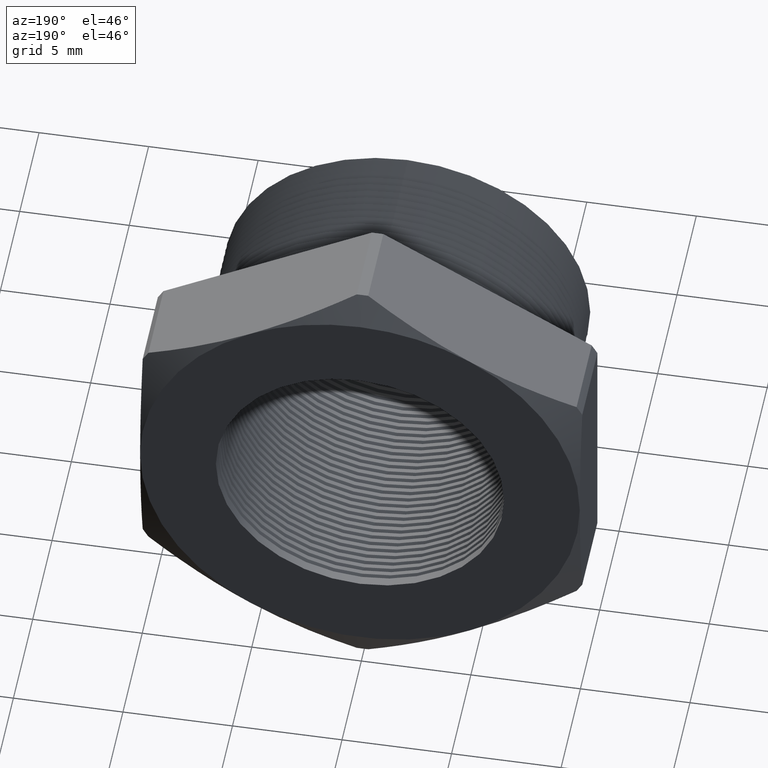
[diagram: clean part render]
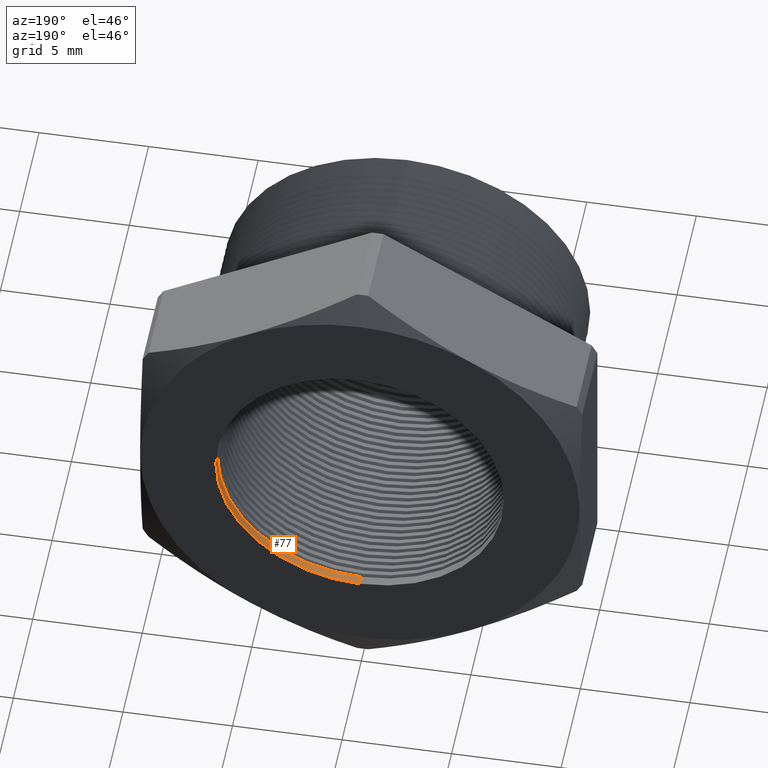
[diagram: same view with one face highlighted and labeled with its STEP entity id]
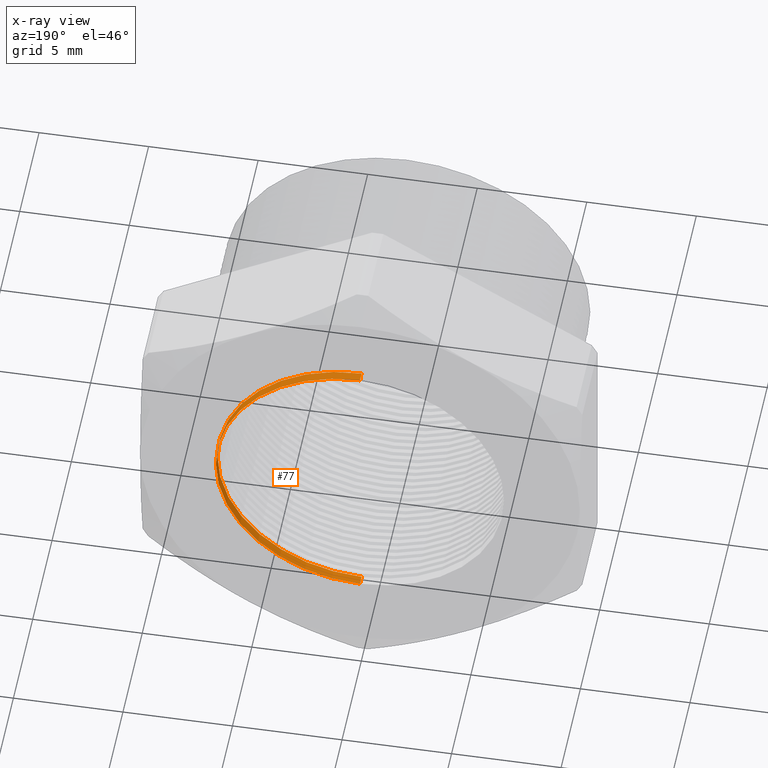
[diagram: x-ray of the same camera — body ghosted, the highlighted face saturated]
A machine part, auxiliary view. The second image highlights one B-rep face of the part: STEP entity #77.
The next image is the same camera in x-ray: the body ghosted, the highlighted face saturated — about 0% of this face is hidden behind the body in this view.
In plain terms, the highlighted cylindrical surface (partial cylindrical patch) has radius 6.5783 mm, axis along (-0, -1, -0).
Its self-contained STEP definition (entity closure, byte-faithful):
#59 = ORIENTED_EDGE ( 'NONE', *, *, #6760, .T. ) ;
#62 = ORIENTED_EDGE ( 'NONE', *, *, #7881, .F. ) ;
#67 = ORIENTED_EDGE ( 'NONE', *, *, #6757, .F. ) ;
#73 = ORIENTED_EDGE ( 'NONE', *, *, #7157, .F. ) ;
#76 = EDGE_LOOP ( 'NONE', ( #67, #73, #59, #62 ) ) ;
#77 = ADVANCED_FACE ( 'NONE', ( #7581 ), #7576, .F. ) ;
#271 = DIRECTION ( 'NONE',  ( 0.0000000000000000000, 0.0000000000000000000, -1.000000000000000000 ) ) ;
#272 = DIRECTION ( 'NONE',  ( -0.0000000000000000000, -1.000000000000000000, -0.0000000000000000000 ) ) ;
#273 = CARTESIAN_POINT ( 'NONE',  ( 0.0000000000000000000, 0.0000000000000000000, 0.0000000000000000000 ) ) ;
#274 = AXIS2_PLACEMENT_3D ( 'NONE', #273, #272, #271 ) ;
#3051 = CARTESIAN_POINT ( 'NONE',  ( 3.171688816986526800E-017, 0.3903219653570460000, 0.2589880461203001900 ) ) ;
#3052 = CARTESIAN_POINT ( 'NONE',  ( 0.0000000000000000000, 0.3903219653570460000, -0.2589880461203001900 ) ) ;
#3110 = DIRECTION ( 'NONE',  ( -0.0000000000000000000, -1.000000000000000000, -0.0000000000000000000 ) ) ;
#3111 = VECTOR ( 'NONE', #3110, 39.37007874015748100 ) ;
#3112 = CARTESIAN_POINT ( 'NONE',  ( 0.0000000000000000000, 0.0000000000000000000, -0.2589880461203001900 ) ) ;
#3113 = LINE ( 'NONE', #3112, #3111 ) ;
#3114 = DIRECTION ( 'NONE',  ( -0.0000000000000000000, -1.000000000000000000, -0.0000000000000000000 ) ) ;
#3115 = VECTOR ( 'NONE', #3114, 39.37007874015748100 ) ;
#3116 = CARTESIAN_POINT ( 'NONE',  ( 3.171688816986526800E-017, 0.0000000000000000000, 0.2589880461203001900 ) ) ;
#3117 = LINE ( 'NONE', #3116, #3115 ) ;
#3134 = CARTESIAN_POINT ( 'NONE',  ( 0.0000000000000000000, 0.4075548905829479200, -0.2589880461203001900 ) ) ;
#3135 = CARTESIAN_POINT ( 'NONE',  ( 3.171688816986526800E-017, 0.4075548905829479200, 0.2589880461203001900 ) ) ;
#3837 = DIRECTION ( 'NONE',  ( 0.0000000000000000000, 0.0000000000000000000, -1.000000000000000000 ) ) ;
#3838 = DIRECTION ( 'NONE',  ( -0.0000000000000000000, -1.000000000000000000, -0.0000000000000000000 ) ) ;
#3839 = AXIS2_PLACEMENT_3D ( 'NONE', #3844, #3838, #3837 ) ;
#3840 = CIRCLE ( 'NONE', #3839, 0.2589880461203001900 ) ;
#3844 = CARTESIAN_POINT ( 'NONE',  ( 0.0000000000000000000, 0.4075548905829479200, 0.0000000000000000000 ) ) ;
#4958 = DIRECTION ( 'NONE',  ( 0.0000000000000000000, 0.0000000000000000000, -1.000000000000000000 ) ) ;
#4959 = DIRECTION ( 'NONE',  ( -0.0000000000000000000, 1.000000000000000000, -0.0000000000000000000 ) ) ;
#4960 = CARTESIAN_POINT ( 'NONE',  ( 0.0000000000000000000, 0.3903219653570460000, 0.0000000000000000000 ) ) ;
#4961 = AXIS2_PLACEMENT_3D ( 'NONE', #4960, #4959, #4958 ) ;
#4964 = CIRCLE ( 'NONE', #4961, 0.2589880461203001900 ) ;
#6727 = VERTEX_POINT ( 'NONE', #3052 ) ;
#6728 = VERTEX_POINT ( 'NONE', #3051 ) ;
#6757 = EDGE_CURVE ( 'NONE', #6781, #6728, #3117, .T. ) ;
#6760 = EDGE_CURVE ( 'NONE', #6782, #6727, #3113, .T. ) ;
#6781 = VERTEX_POINT ( 'NONE', #3135 ) ;
#6782 = VERTEX_POINT ( 'NONE', #3134 ) ;
#7157 = EDGE_CURVE ( 'NONE', #6782, #6781, #3840, .T. ) ;
#7576 = CYLINDRICAL_SURFACE ( 'NONE', #274, 0.2589880461203001900 ) ;
#7581 = FACE_OUTER_BOUND ( 'NONE', #76, .T. ) ;
#7881 = EDGE_CURVE ( 'NONE', #6728, #6727, #4964, .T. ) ;